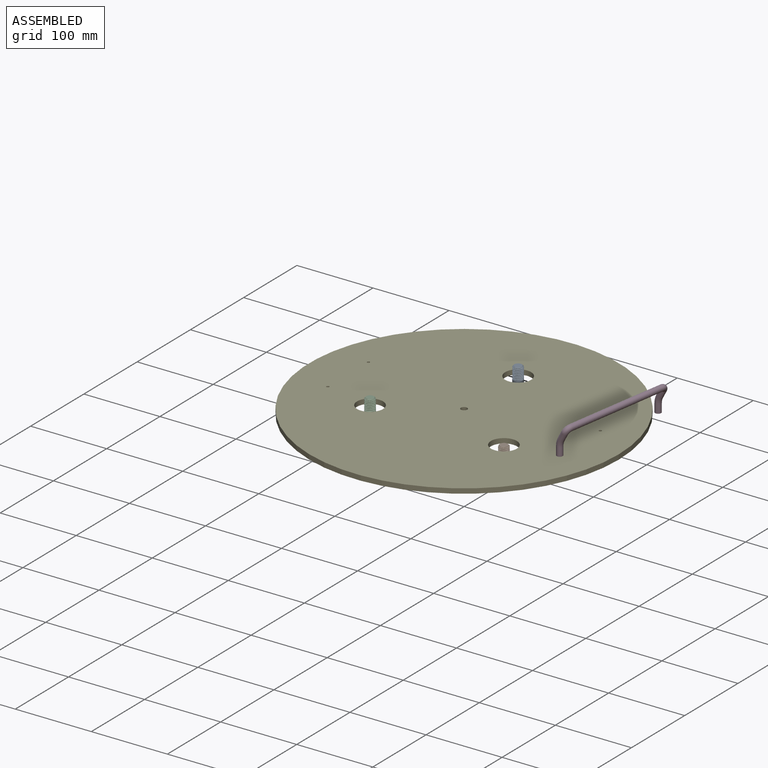
[diagram: assembled view]
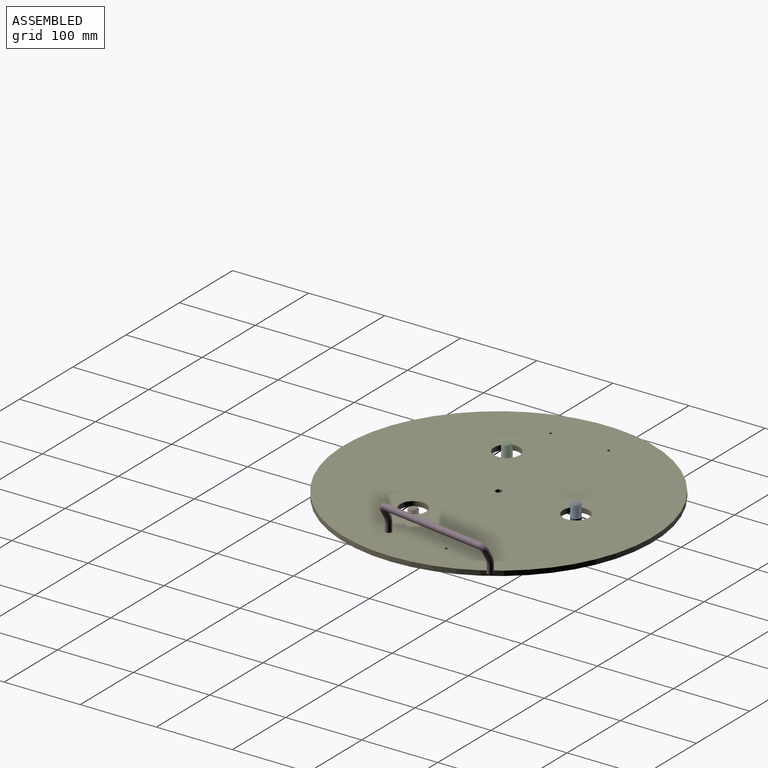
[diagram: assembled view, second angle]
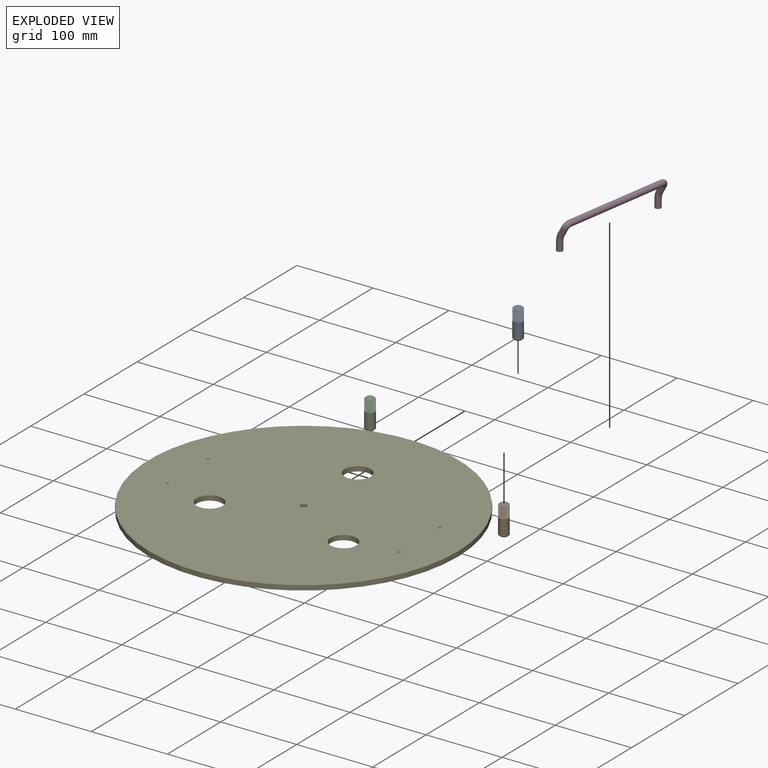
[diagram: exploded view]
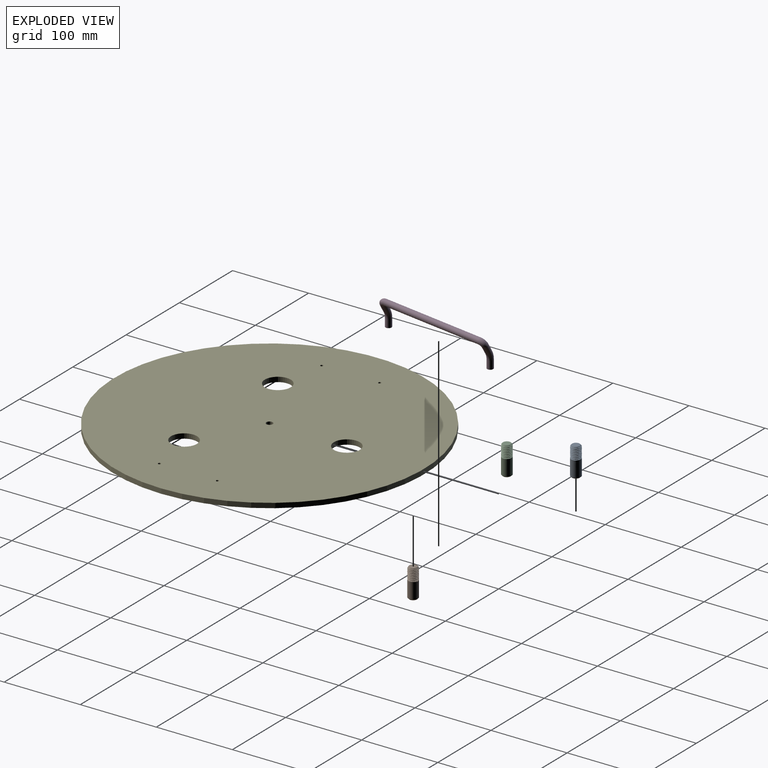
[diagram: exploded view, second angle]
ASSEMBLY  parts=5 mates=6
PART A: 16 faces, bbox 14.1x13.5x39.4 mm
  f0: cone r=4.88mm half-angle=45deg, axis (0,0,1), area 73.1mm2, adj f2,f10
  f1: cone r=6.35mm half-angle=45deg, axis (0,0,-1), area 40mm2, adj f9,f11,f12,f13,f14
  f2: cylinder r=6.35mm len=21.98mm, axis (0,0,-1), area 833.8mm2, adj f0,f3,f12,f14,f15
  f3: cylinder r=6.35mm len=12.7mm, axis (0,0,-1), area 9.7mm2, adj f2,f4,f12,f14
  f4: cylinder r=6.35mm len=12.7mm, axis (0,0,-1), area 9.7mm2, adj f3,f5,f12,f14
  f5: cylinder r=6.35mm len=12.7mm, axis (0,0,-1), area 9.7mm2, adj f4,f6,f12,f14
  f6: cylinder r=6.35mm len=12.7mm, axis (0,0,-1), area 9.7mm2, adj f5,f7,f12,f14
  f7: cylinder r=6.35mm len=12.7mm, axis (0,0,-1), area 9.7mm2, adj f6,f8,f12,f14
  f8: cylinder r=6.35mm len=12.7mm, axis (0,0,-1), area 9.7mm2, adj f7,f9,f12,f14
  f9: cylinder r=6.35mm len=12.7mm, axis (0,0,-1), area 7.9mm2, adj f1,f8,f12,f14
  f10: plane 9.77x9.77mm, normal (0,0,-1), area 75mm2, adj f0
  f11: plane 9.77x9.77mm, normal (0,0,1), area 75mm2, adj f1
  f12: bspline ~16.41x12.69mm, area 405mm2, adj f1,f2,f3,f4,f5,f6,f7,f8
  f13: cylinder r=5.08mm len=15.68mm, axis (0,0,-1), area 68.4mm2, adj f1,f12,f14,f15
  f14: bspline ~17.15x13.35mm, area 403.9mm2, adj f1,f2,f3,f4,f5,f6,f7,f8
  f15: plane 13.45x13.45mm, normal (0,0,1), area 23.3mm2, adj f2,f12,f13,f14
PART B: same geometry as A
PART C: same geometry as A
PART D: 23 faces, bbox 162.2x20.9x39.2 mm
  f0: torus R=19.05mm, axis (1,0,0), area 248.7mm2, adj f6,f7
  f1: torus R=5.55mm, axis (0,-0.87,-0.5), area 217.4mm2, adj f7,f8
  f2: torus R=5.55mm, axis (0,-0.87,-0.5), area 217.4mm2, adj f8,f9
  f3: torus R=19.05mm, axis (-1,0,0), area 248.7mm2, adj f9,f10
  f4: cone r=2.08mm half-angle=45deg, axis (0,0,-1), area 4.3mm2, adj f15,f20,f21,f22
  f5: cone r=2.08mm half-angle=45deg, axis (0,0,-1), area 4.3mm2, adj f16,f17,f18,f19
  f6: cylinder r=3.97mm len=10.77mm, axis (0,0,-1), area 268.6mm2, adj f0,f16
  f7: cylinder r=3.97mm len=13mm, axis (0,-0.5,0.87), area 260mm2, adj f0,f1
  f8: cylinder r=3.97mm len=141.3mm, axis (-1,0,0), area 3523.5mm2, adj f1,f2
  f9: cylinder r=3.97mm len=13mm, axis (0,0.5,-0.87), area 260mm2, adj f2,f3
  f10: cylinder r=3.97mm len=10.77mm, axis (0,0,-1), area 268.6mm2, adj f3,f15
  f11: cylinder r=2.08mm len=7.94mm, axis (0,0,-1), area 13mm2, adj f14,f16,f17,f18
  f12: cylinder r=2.08mm len=7.94mm, axis (0,0,-1), area 13mm2, adj f13,f15,f20,f21
  f13: plane 4x3.98mm, normal (0,0,-1), area 10.6mm2, adj f12,f20,f21,f22
  f14: plane 4x3.98mm, normal (0,0,-1), area 10.6mm2, adj f11,f17,f18,f19
  f15: plane 7.94x7.94mm, normal (0,0,-1), area 35.9mm2, adj f4,f10,f12
  f16: plane 7.94x7.94mm, normal (0,0,-1), area 35.9mm2, adj f5,f6,f11
  f17: bspline ~8.58x4.17mm, area 66.3mm2, adj f5,f11,f14,f19
  f18: bspline ~8.24x4.16mm, area 66.3mm2, adj f5,f11,f14,f19
  f19: cylinder r=1.57mm len=7.42mm, axis (0,0,-1), area 9.1mm2, adj f5,f14,f17,f18
  f20: bspline ~8.53x4.17mm, area 66.3mm2, adj f4,f12,f13,f22
  f21: bspline ~8.24x4.16mm, area 66.3mm2, adj f4,f12,f13,f22
  f22: cylinder r=1.57mm len=7.42mm, axis (0,0,-1), area 9.1mm2, adj f4,f13,f20,f21
PART E: 11 faces, bbox 406.4x406.4x6.4 mm
  f0: cylinder r=203.2mm len=406.4mm, axis (0,0,-1), area 8107.3mm2, adj f1,f2
  f1: plane 406.4x406.4mm, normal (0,0,1), area 126879.1mm2, adj f0,f3,f4,f5,f6,f7,f8,f9
  f2: plane 406.4x406.4mm, normal (0,0,-1), area 126879.1mm2, adj f0,f3,f4,f5,f6,f7,f8,f9
  f3: cylinder r=17.06mm len=34.13mm, axis (0,0,1), area 680.9mm2, adj f1,f2
  f4: cylinder r=17.06mm len=34.13mm, axis (0,0,1), area 680.9mm2, adj f1,f2
  f5: cylinder r=17.06mm len=34.13mm, axis (0,0,1), area 680.9mm2, adj f1,f2
  f6: cylinder r=1.73mm len=6.35mm, axis (0,0,1), area 68.9mm2, adj f1,f2
  f7: cylinder r=1.73mm len=6.35mm, axis (0,0,1), area 68.9mm2, adj f1,f2
  f8: cylinder r=1.73mm len=6.35mm, axis (0,0,1), area 68.9mm2, adj f1,f2
  f9: cylinder r=1.73mm len=6.35mm, axis (0,0,1), area 68.9mm2, adj f1,f2
  f10: cylinder r=4.22mm len=8.43mm, axis (0,0,1), area 168.2mm2, adj f1,f2
PLACE A t=(-0.07,101.57,12.71)mm
PLACE B rot(axis=(0,0,-1),147deg) t=(87.92,-50.83,0.01)mm
PLACE C t=(-88.06,-50.83,9.53)mm
PLACE D rot(axis=(0,0,1),80.9deg) t=(164.34,37.11,0.01)mm
PLACE E t=(-0.07,-0.03,-6.34)mm fixed
MATE cylindrical D.f10 <-> E.f7  axis (0,0,-1) through (152.33,-38.13,0.01)mm
MATE planar E.f0 <-> B.f1  axis (0,0,1) through (-0.07,-0.03,0.01)mm
MATE slider A.f0 <-> E.f5  axis (0,0,-1) through (-0.07,101.57,-6.34)mm
MATE cylindrical B.f0 <-> E.f4  axis (0,0,-1) through (87.92,-50.83,-19.04)mm
MATE slider C.f0 <-> E.f3  axis (0,0,1) through (-88.06,-50.83,-6.34)mm
MATE planar D.f10 <-> E.f0  axis (0,0,-1) through (152.33,-38.13,0.01)mm
